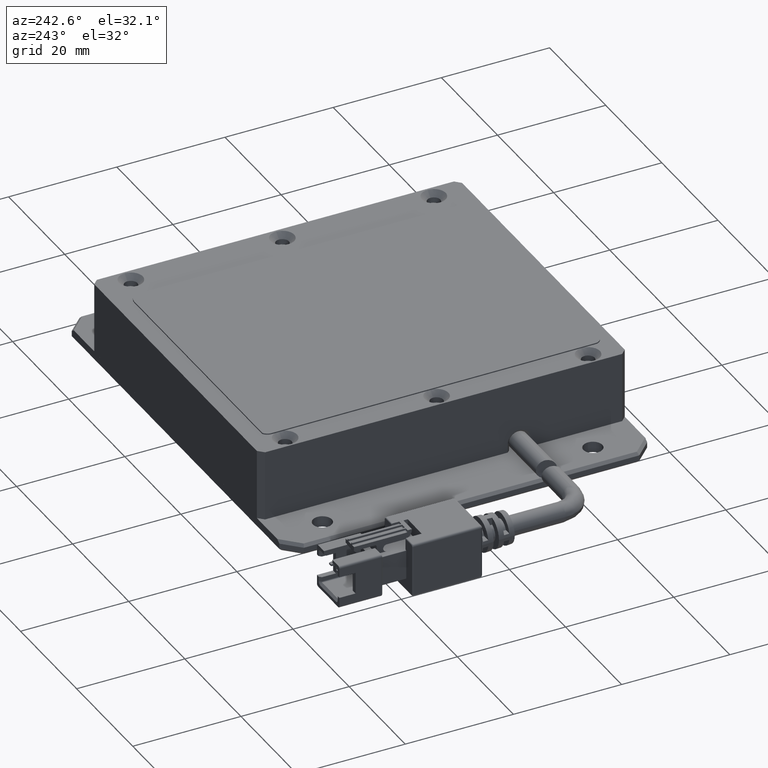
[diagram: clean part render]
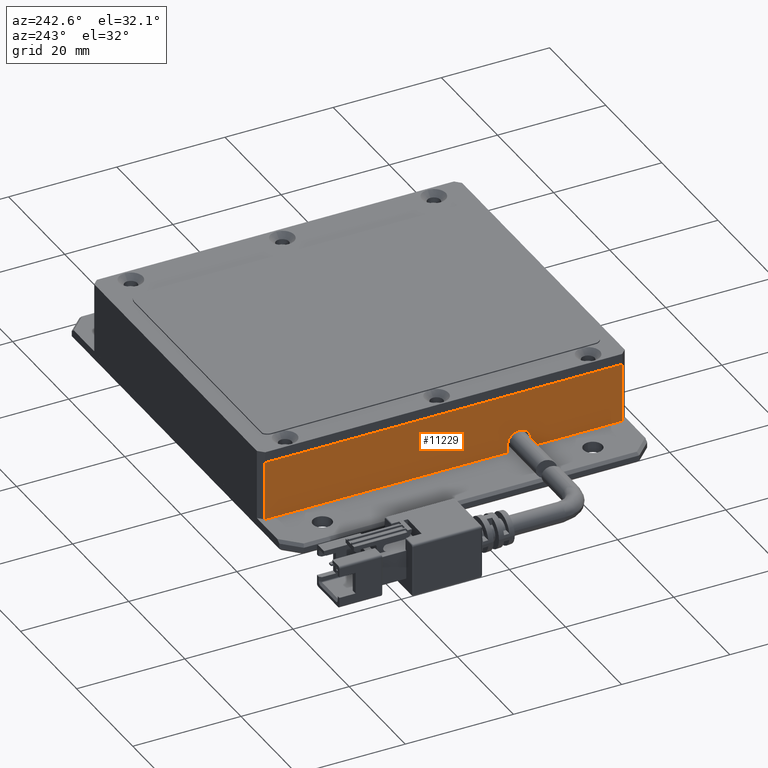
[diagram: same view with one face highlighted and labeled with its STEP entity id]
A machine part, auxiliary view. The second image highlights one B-rep face of the part: STEP entity #11229.
In plain terms, the highlighted planar face has unit normal (1, 0, 0).
Its self-contained STEP definition (entity closure, byte-faithful):
#133 = VERTEX_POINT ( 'NONE', #25103 ) ;
#324 = ORIENTED_EDGE ( 'NONE', *, *, #8943, .F. ) ;
#526 = VECTOR ( 'NONE', #19612, 1000.000000000000000 ) ;
#686 = EDGE_CURVE ( 'NONE', #31168, #32393, #6820, .T. ) ;
#1607 = CARTESIAN_POINT ( 'NONE',  ( -35.25773195881973300, -14.64910271095834900, 1.549999999995453000 ) ) ;
#2183 = EDGE_CURVE ( 'NONE', #2859, #35524, #36038, .T. ) ;
#2859 = VERTEX_POINT ( 'NONE', #21316 ) ;
#3461 = CARTESIAN_POINT ( 'NONE',  ( -35.25773195876288900, -34.64910271095834600, 10.99999999999545100 ) ) ;
#3498 = CARTESIAN_POINT ( 'NONE',  ( -35.25773195876288900, -12.49910271095834900, 10.99999999999545100 ) ) ;
#4306 = DIRECTION ( 'NONE',  ( 0.0000000000000000000, 0.0000000000000000000, -1.000000000000000000 ) ) ;
#4679 = DIRECTION ( 'NONE',  ( 0.0000000000000000000, 0.0000000000000000000, 1.000000000000000000 ) ) ;
#4870 = DIRECTION ( 'NONE',  ( -1.000000000000000000, 0.0000000000000000000, 0.0000000000000000000 ) ) ;
#4880 = LINE ( 'NONE', #36681, #28405 ) ;
#5244 = DIRECTION ( 'NONE',  ( -0.0000000000000000000, 1.000000000000000000, 0.0000000000000000000 ) ) ;
#6557 = DIRECTION ( 'NONE',  ( 0.0000000000000000000, 0.0000000000000000000, -1.000000000000000000 ) ) ;
#6820 = LINE ( 'NONE', #8305, #13991 ) ;
#6899 = EDGE_CURVE ( 'NONE', #29538, #15638, #17571, .T. ) ;
#7667 = DIRECTION ( 'NONE',  ( -0.0000000000000000000, 1.000000000000000000, 0.0000000000000000000 ) ) ;
#7978 = VERTEX_POINT ( 'NONE', #10547 ) ;
#8305 = CARTESIAN_POINT ( 'NONE',  ( -35.25773195876288900, -34.64910271095834600, -4.547577592273199800E-012 ) ) ;
#8943 = EDGE_CURVE ( 'NONE', #133, #13772, #20577, .T. ) ;
#9255 = FACE_OUTER_BOUND ( 'NONE', #20536, .T. ) ;
#9447 = VECTOR ( 'NONE', #9659, 1000.000000000000000 ) ;
#9491 = PLANE ( 'NONE',  #27257 ) ;
#9659 = DIRECTION ( 'NONE',  ( 0.0000000000000000000, 0.0000000000000000000, -1.000000000000000000 ) ) ;
#10049 = CARTESIAN_POINT ( 'NONE',  ( -35.25773195876288200, 32.35089728904165400, 10.99999999999545100 ) ) ;
#10143 = ORIENTED_EDGE ( 'NONE', *, *, #33018, .F. ) ;
#10446 = CARTESIAN_POINT ( 'NONE',  ( -35.25773195876288900, -33.64910271095834600, 10.99999999999545100 ) ) ;
#10547 = CARTESIAN_POINT ( 'NONE',  ( -35.25773195876288900, 32.35089728904165400, -4.547577592273199800E-012 ) ) ;
#11229 = ADVANCED_FACE ( 'NONE', ( #9255 ), #9491, .F. ) ;
#12652 = EDGE_CURVE ( 'NONE', #13772, #29538, #30418, .T. ) ;
#13772 = VERTEX_POINT ( 'NONE', #38363 ) ;
#13991 = VECTOR ( 'NONE', #5244, 1000.000000000000000 ) ;
#14012 = CARTESIAN_POINT ( 'NONE',  ( -35.25773195876288900, -12.49910271095834500, -4.547577592273199800E-012 ) ) ;
#14958 = ORIENTED_EDGE ( 'NONE', *, *, #35643, .F. ) ;
#15638 = VERTEX_POINT ( 'NONE', #14012 ) ;
#15639 = LINE ( 'NONE', #29288, #32100 ) ;
#16814 = ORIENTED_EDGE ( 'NONE', *, *, #35413, .F. ) ;
#17571 = LINE ( 'NONE', #3498, #9447 ) ;
#17612 = ORIENTED_EDGE ( 'NONE', *, *, #6899, .F. ) ;
#17715 = DIRECTION ( 'NONE',  ( 0.0000000000000000000, 1.000000000000000000, 0.0000000000000000000 ) ) ;
#18524 = CARTESIAN_POINT ( 'NONE',  ( -35.25773195876288900, -33.64910271095834600, -4.547577592273199800E-012 ) ) ;
#19403 = CARTESIAN_POINT ( 'NONE',  ( -35.25773195881973300, -12.49910271096976000, 1.549999999995451700 ) ) ;
#19612 = DIRECTION ( 'NONE',  ( -0.0000000000000000000, -0.0000000000000000000, 1.000000000000000000 ) ) ;
#19623 = VECTOR ( 'NONE', #17715, 1000.000000000000000 ) ;
#20135 = LINE ( 'NONE', #10446, #27373 ) ;
#20536 = EDGE_LOOP ( 'NONE', ( #324, #10143, #32026, #14958, #36867, #16814, #39331, #17612, #24248 ) ) ;
#20577 = CIRCLE ( 'NONE', #34165, 2.149999999980718000 ) ;
#21316 = CARTESIAN_POINT ( 'NONE',  ( -35.25773195876288900, -33.64910271095834600, 10.99999999999545400 ) ) ;
#23018 = DIRECTION ( 'NONE',  ( -1.000000000000000000, 0.0000000000000000000, 0.0000000000000000000 ) ) ;
#23201 = CARTESIAN_POINT ( 'NONE',  ( -35.25773195881973300, -14.64910271095834900, 1.549999999995453000 ) ) ;
#24043 = LINE ( 'NONE', #38136, #526 ) ;
#24248 = ORIENTED_EDGE ( 'NONE', *, *, #12652, .F. ) ;
#24754 = AXIS2_PLACEMENT_3D ( 'NONE', #1607, #23018, #4679 ) ;
#24944 = DIRECTION ( 'NONE',  ( 1.000000000000000000, 0.0000000000000000000, 0.0000000000000000000 ) ) ;
#25103 = CARTESIAN_POINT ( 'NONE',  ( -35.25773195880552200, -16.79910271094182100, 1.549999999995449500 ) ) ;
#26352 = DIRECTION ( 'NONE',  ( 0.0000000000000000000, 0.0000000000000000000, 1.000000000000000000 ) ) ;
#27257 = AXIS2_PLACEMENT_3D ( 'NONE', #3461, #24944, #6557 ) ;
#27373 = VECTOR ( 'NONE', #4306, 1000.000000000000000 ) ;
#28405 = VECTOR ( 'NONE', #39649, 1000.000000000000000 ) ;
#29288 = CARTESIAN_POINT ( 'NONE',  ( -35.25773195876288900, -34.64910271095834600, -4.547577592273199800E-012 ) ) ;
#29538 = VERTEX_POINT ( 'NONE', #19403 ) ;
#30418 = CIRCLE ( 'NONE', #24754, 2.149999999980718000 ) ;
#31168 = VERTEX_POINT ( 'NONE', #18524 ) ;
#32026 = ORIENTED_EDGE ( 'NONE', *, *, #686, .F. ) ;
#32100 = VECTOR ( 'NONE', #7667, 1000.000000000000000 ) ;
#32393 = VERTEX_POINT ( 'NONE', #34700 ) ;
#33018 = EDGE_CURVE ( 'NONE', #32393, #133, #24043, .T. ) ;
#34165 = AXIS2_PLACEMENT_3D ( 'NONE', #23201, #4870, #26352 ) ;
#34700 = CARTESIAN_POINT ( 'NONE',  ( -35.25773195876288200, -16.79910271095834800, -4.547577592273199800E-012 ) ) ;
#35413 = EDGE_CURVE ( 'NONE', #7978, #35524, #4880, .T. ) ;
#35524 = VERTEX_POINT ( 'NONE', #10049 ) ;
#35643 = EDGE_CURVE ( 'NONE', #2859, #31168, #20135, .T. ) ;
#36038 = LINE ( 'NONE', #36189, #19623 ) ;
#36189 = CARTESIAN_POINT ( 'NONE',  ( -35.25773195876288900, 33.35089728904165400, 10.99999999999545100 ) ) ;
#36681 = CARTESIAN_POINT ( 'NONE',  ( -35.25773195876288900, 32.35089728904164000, 10.99999999999545100 ) ) ;
#36867 = ORIENTED_EDGE ( 'NONE', *, *, #2183, .T. ) ;
#38105 = EDGE_CURVE ( 'NONE', #15638, #7978, #15639, .T. ) ;
#38136 = CARTESIAN_POINT ( 'NONE',  ( -35.25773195876288900, -16.79910271095835100, 10.99999999999545100 ) ) ;
#38363 = CARTESIAN_POINT ( 'NONE',  ( -35.25773195881973300, -14.64910271095834900, 3.699999999976171200 ) ) ;
#39331 = ORIENTED_EDGE ( 'NONE', *, *, #38105, .F. ) ;
#39649 = DIRECTION ( 'NONE',  ( -0.0000000000000000000, -0.0000000000000000000, 1.000000000000000000 ) ) ;